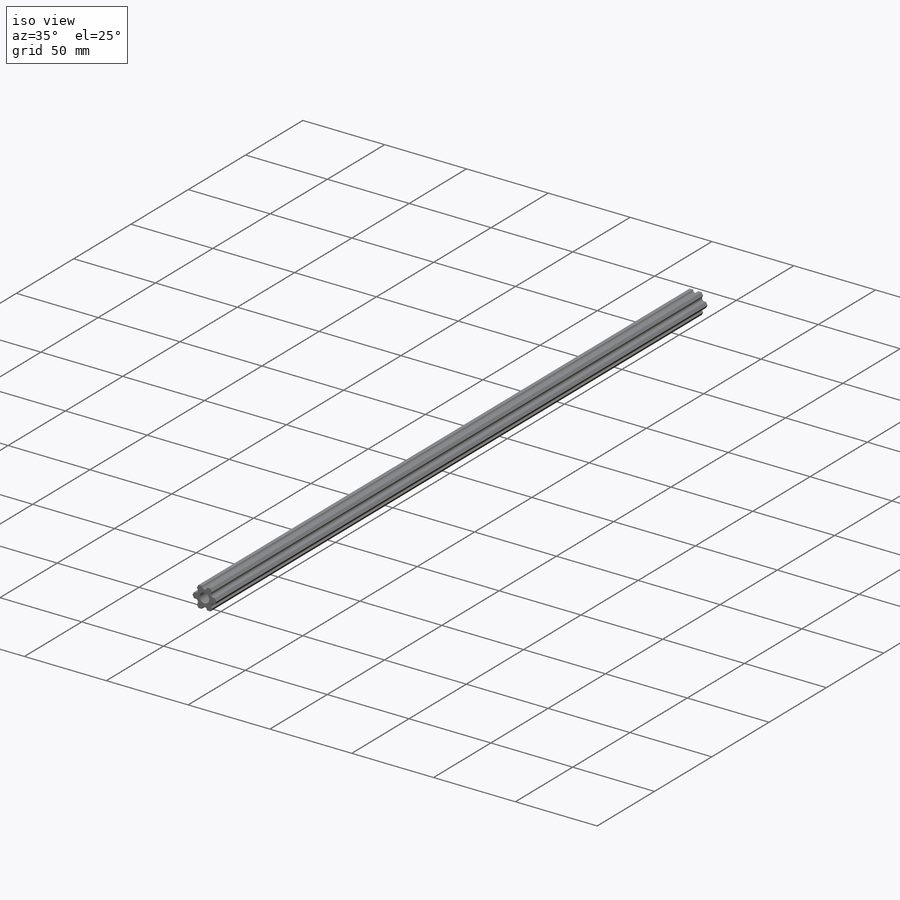
[diagram: iso view]
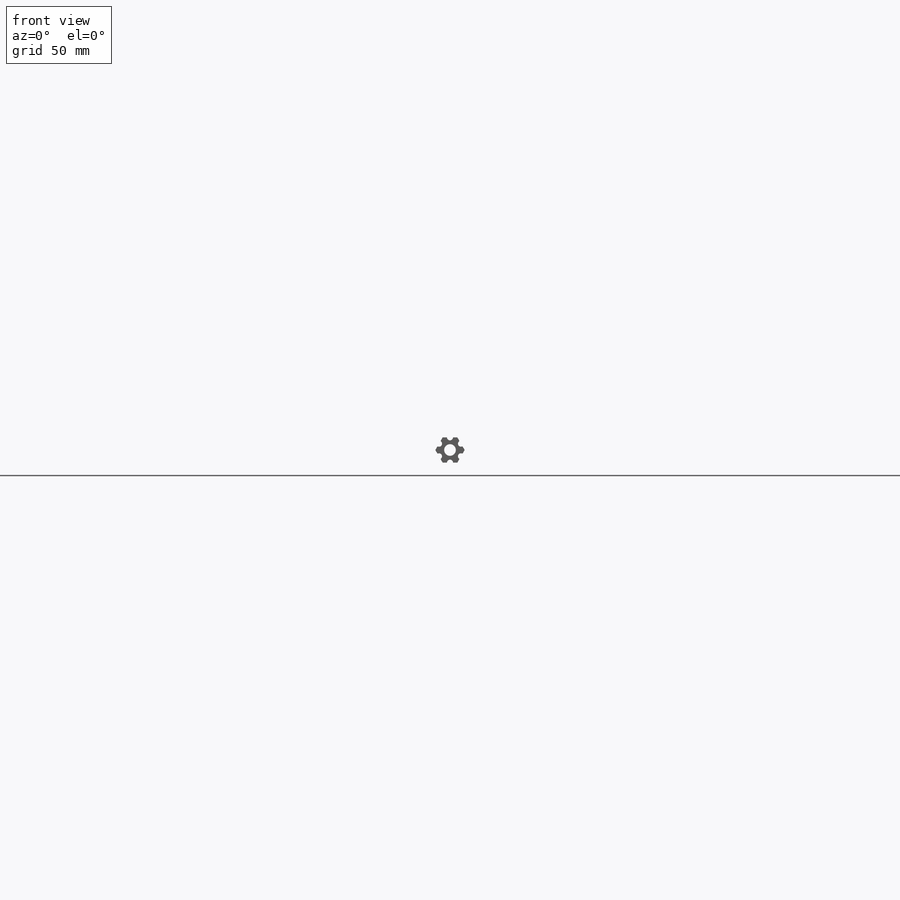
[diagram: front view]
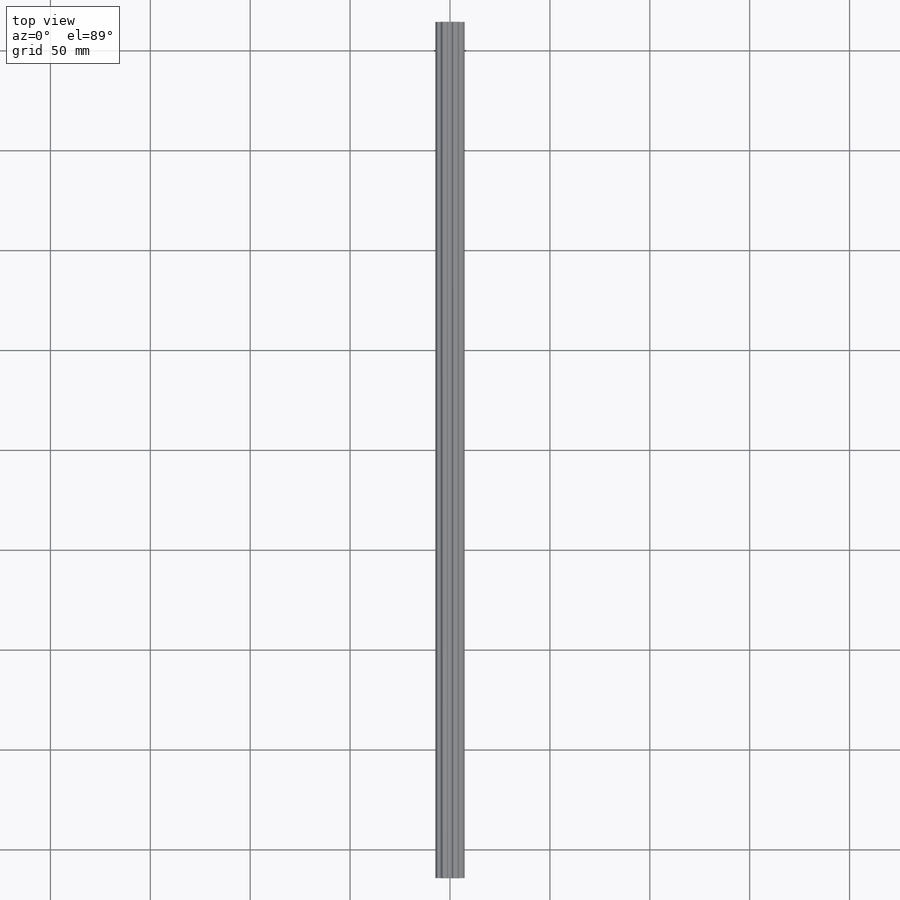
[diagram: top view]
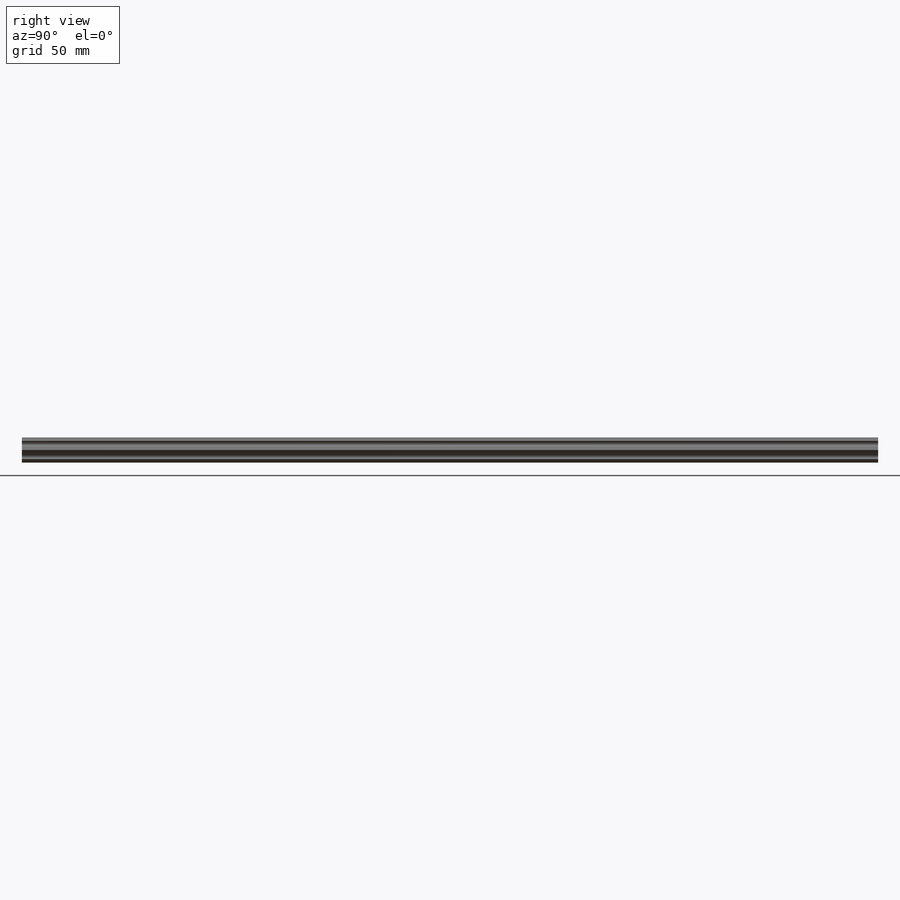
[diagram: right view]
SOLIDWORKS PART (.sldprt)
format: sldprt  version: not decoded by parser v0  size: 535,040 bytes
history: native  units: mm
features: sketch x3, extrude x2, material x1, cut_extrude x1, pattern_circular x1, fillet x1 (+16 scaffold rows collapsed)
feature tree (25):
  scaffold x16  (default folders/planes/origin — collapsed)
  material  "6063-O"
  sketch  "Sketch1"  dims[c1.D1=5.8674mm c1.D3=1.524mm c2.D1=5.8674mm c2.D2=12.7mm]
  extrude  "Extrude1"  Depth=428.625mm
  sketch  "Sketch5"  dims[D1=3.048mm]
  cut_extrude  "Extrude2"  [1 undecoded]
  pattern_circular  "CirPattern2"  Count=6 Angle=360deg
  fillet  "Fillet1"  Radius=0.254mm
  sketch  "Sketch6"  dims[D1=0.0mm]
  extrude  "Extrude3"  Depth=254mm
decode coverage: 7 of 8 modeling features carry decoded parameters
note: 1 parameter value undecoded
note: suppression state not decoded; provenance and decode notes live in map.json
